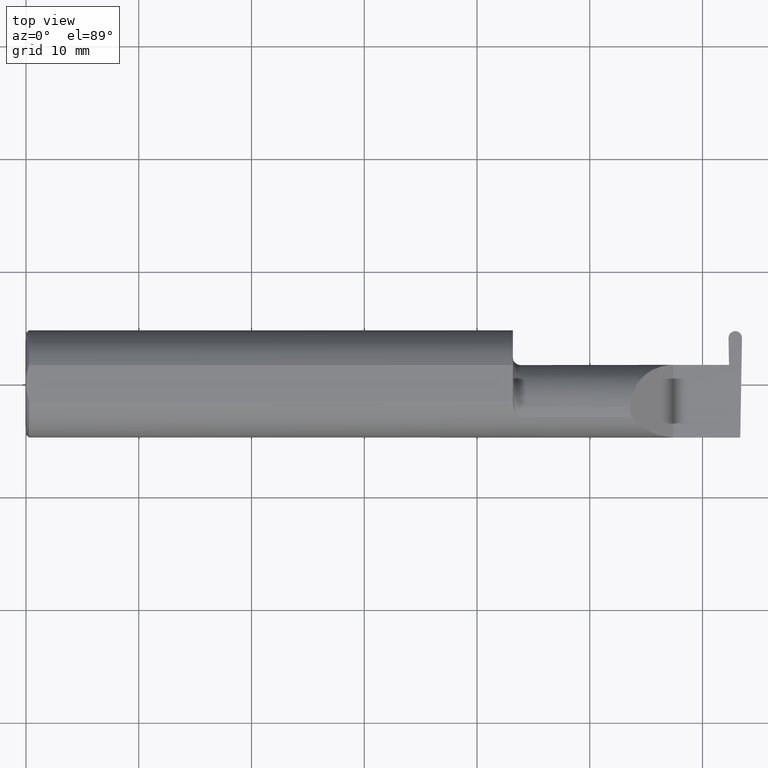
[diagram: clean part render]
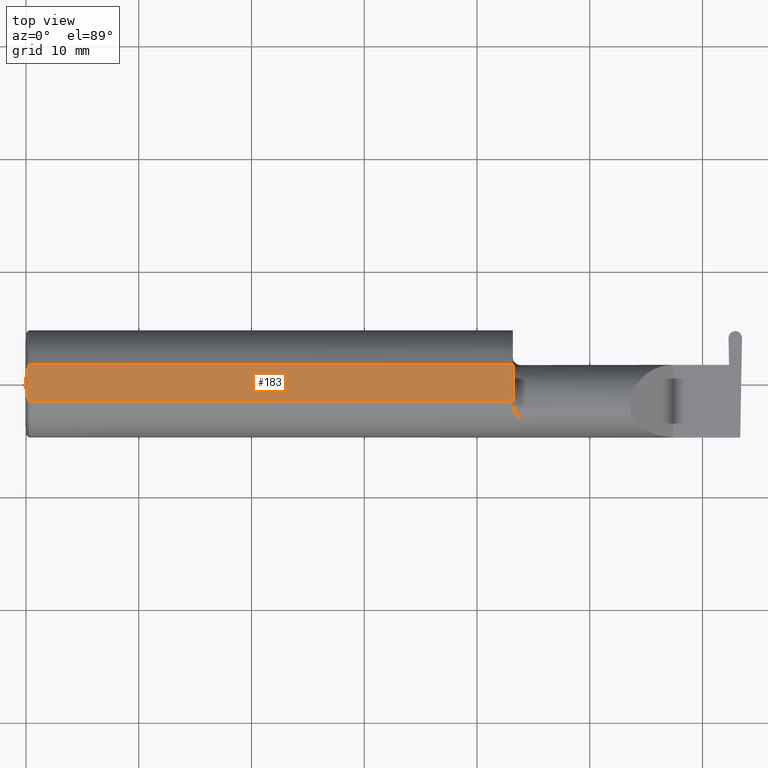
[diagram: same view with one face highlighted and labeled with its STEP entity id]
A machine part, top view. The second image highlights one B-rep face of the part: STEP entity #183.
In plain terms, the highlighted planar face has unit normal (0, 0, 1).
Its self-contained STEP definition (entity closure, byte-faithful):
#17 = EDGE_CURVE ( 'NONE', #339, #361, #64, .T. ) ;
#21 = VERTEX_POINT ( 'NONE', #66 ) ;
#28 = B_SPLINE_CURVE_WITH_KNOTS ( 'NONE', 3,
 ( #593, #614, #287, #32 ),
 .UNSPECIFIED., .F., .F.,
 ( 4, 4 ),
 ( 0.009771445421851331775, 0.01092787937989104369 ),
 .UNSPECIFIED. ) ;
#32 = CARTESIAN_POINT ( 'NONE',  ( 0.000000000000000000, -0.01880691362238934641, 0.1763499999999999235 ) ) ;
#40 = CARTESIAN_POINT ( 'NONE',  ( 0.005155213631852493573, 0.04890080824240055496, 0.1763499999999999235 ) ) ;
#51 = EDGE_CURVE ( 'NONE', #21, #361, #491, .T. ) ;
#64 = LINE ( 'NONE', #748, #293 ) ;
#66 = CARTESIAN_POINT ( 'NONE',  ( 0.000000000000000000, 0.01880691362238934988, 0.1763499999999999235 ) ) ;
#69 = EDGE_CURVE ( 'NONE', #681, #21, #78, .T. ) ;
#78 = LINE ( 'NONE', #457, #802 ) ;
#141 = CARTESIAN_POINT ( 'NONE',  ( 0.01000000000000013205, 0.06325108694718235836, 0.1763499999999999235 ) ) ;
#146 = ORIENTED_EDGE ( 'NONE', *, *, #69, .F. ) ;
#162 = CARTESIAN_POINT ( 'NONE',  ( 1.699999999999999956, 0.1873499999999998500, 0.1763499999999999235 ) ) ;
#170 = EDGE_CURVE ( 'NONE', #812, #251, #723, .T. ) ;
#183 = ADVANCED_FACE ( 'NONE', ( #300 ), #366, .T. ) ;
#204 = CARTESIAN_POINT ( 'NONE',  ( 0.001616639753276021213, 0.03405189565400638246, 0.1763499999999999235 ) ) ;
#251 = VERTEX_POINT ( 'NONE', #684 ) ;
#267 = CARTESIAN_POINT ( 'NONE',  ( 0.01000000000000013205, -0.06325108694718235836, 0.1763499999999999235 ) ) ;
#287 = CARTESIAN_POINT ( 'NONE',  ( 0.001595548104417008695, -0.03385300050298640367, 0.1763499999999999235 ) ) ;
#293 = VECTOR ( 'NONE', #372, 39.37007874015748143 ) ;
#300 = FACE_OUTER_BOUND ( 'NONE', #325, .T. ) ;
#325 = EDGE_LOOP ( 'NONE', ( #612, #736, #796, #431, #146, #735 ) ) ;
#339 = VERTEX_POINT ( 'NONE', #385 ) ;
#361 = VERTEX_POINT ( 'NONE', #141 ) ;
#365 = AXIS2_PLACEMENT_3D ( 'NONE', #493, #795, #734 ) ;
#366 = PLANE ( 'NONE',  #365 ) ;
#372 = DIRECTION ( 'NONE',  ( -1.000000000000000000, -0.000000000000000000, -0.000000000000000000 ) ) ;
#385 = CARTESIAN_POINT ( 'NONE',  ( 1.699999999999999956, 0.06325108694718235836, 0.1763499999999999235 ) ) ;
#418 = VECTOR ( 'NONE', #454, 39.37007874015748143 ) ;
#431 = ORIENTED_EDGE ( 'NONE', *, *, #51, .F. ) ;
#453 = CARTESIAN_POINT ( 'NONE',  ( 0.000000000000000000, 0.01880691362238934988, 0.1763499999999999235 ) ) ;
#454 = DIRECTION ( 'NONE',  ( 0.000000000000000000, 1.000000000000000000, 0.000000000000000000 ) ) ;
#457 = CARTESIAN_POINT ( 'NONE',  ( 0.000000000000000000, 0.1873499999999998500, 0.1763499999999999235 ) ) ;
#480 = CARTESIAN_POINT ( 'NONE',  ( 0.000000000000000000, -0.06325108694718235836, 0.1763499999999999235 ) ) ;
#483 = EDGE_CURVE ( 'NONE', #812, #681, #28, .T. ) ;
#491 = B_SPLINE_CURVE_WITH_KNOTS ( 'NONE', 3,
 ( #453, #204, #40, #520 ),
 .UNSPECIFIED., .F., .F.,
 ( 4, 4 ),
 ( 0.01188664626022242071, 0.01304646959483746725 ),
 .UNSPECIFIED. ) ;
#493 = CARTESIAN_POINT ( 'NONE',  ( 2.876828993045917215, 0.1873499999999998500, 0.1763499999999999235 ) ) ;
#520 = CARTESIAN_POINT ( 'NONE',  ( 0.01000000000000013205, 0.06325108694718235836, 0.1763499999999999235 ) ) ;
#522 = LINE ( 'NONE', #162, #418 ) ;
#563 = VECTOR ( 'NONE', #799, 39.37007874015748143 ) ;
#593 = CARTESIAN_POINT ( 'NONE',  ( 0.01000000000000013205, -0.06325108694718235836, 0.1763499999999999235 ) ) ;
#612 = ORIENTED_EDGE ( 'NONE', *, *, #170, .T. ) ;
#614 = CARTESIAN_POINT ( 'NONE',  ( 0.005151108632379722968, -0.04888864921576022843, 0.1763499999999999235 ) ) ;
#644 = DIRECTION ( 'NONE',  ( -0.000000000000000000, 1.000000000000000000, -0.000000000000000000 ) ) ;
#681 = VERTEX_POINT ( 'NONE', #774 ) ;
#684 = CARTESIAN_POINT ( 'NONE',  ( 1.699999999999999956, -0.06325108694718287183, 0.1763499999999999235 ) ) ;
#715 = EDGE_CURVE ( 'NONE', #251, #339, #522, .T. ) ;
#723 = LINE ( 'NONE', #480, #563 ) ;
#734 = DIRECTION ( 'NONE',  ( 1.000000000000000000, 0.000000000000000000, -0.000000000000000000 ) ) ;
#735 = ORIENTED_EDGE ( 'NONE', *, *, #483, .F. ) ;
#736 = ORIENTED_EDGE ( 'NONE', *, *, #715, .T. ) ;
#748 = CARTESIAN_POINT ( 'NONE',  ( 0.000000000000000000, 0.06325108694718235836, 0.1763499999999999235 ) ) ;
#774 = CARTESIAN_POINT ( 'NONE',  ( 0.000000000000000000, -0.01880691362238934641, 0.1763499999999999235 ) ) ;
#795 = DIRECTION ( 'NONE',  ( 0.000000000000000000, 0.000000000000000000, 1.000000000000000000 ) ) ;
#796 = ORIENTED_EDGE ( 'NONE', *, *, #17, .T. ) ;
#799 = DIRECTION ( 'NONE',  ( 1.000000000000000000, 0.000000000000000000, 0.000000000000000000 ) ) ;
#802 = VECTOR ( 'NONE', #644, 39.37007874015748143 ) ;
#812 = VERTEX_POINT ( 'NONE', #267 ) ;